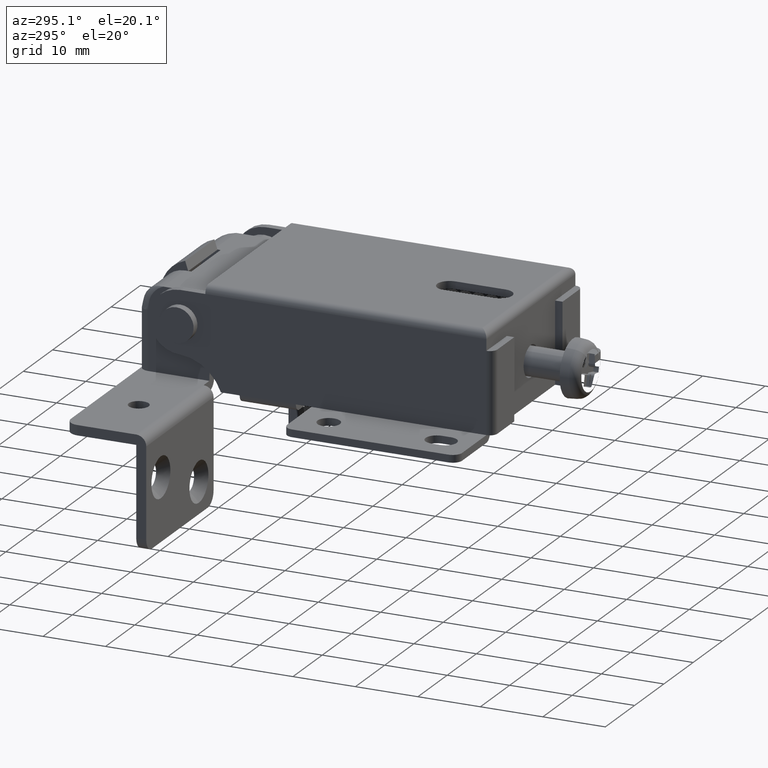
[diagram: clean part render]
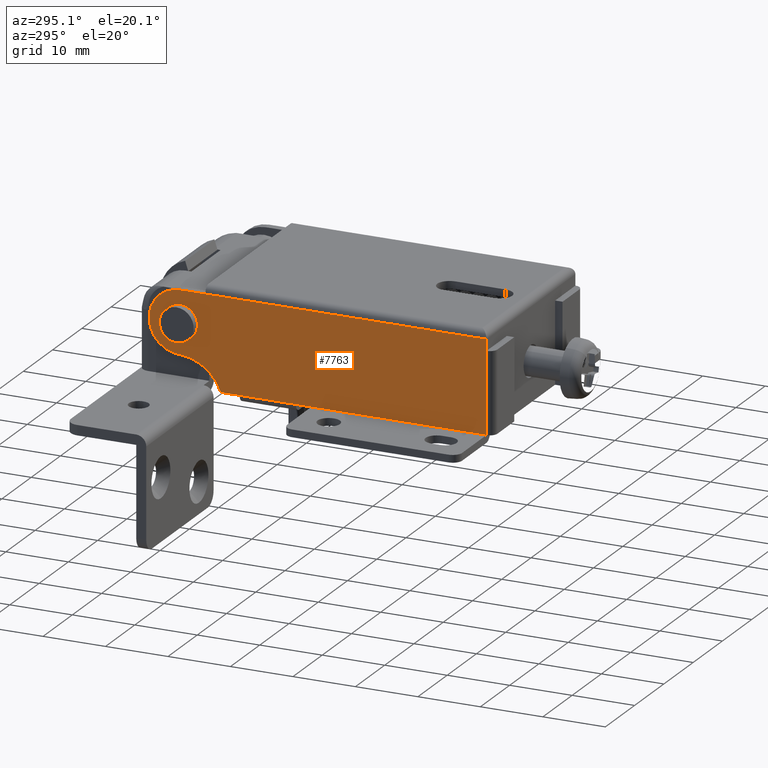
[diagram: same view with one face highlighted and labeled with its STEP entity id]
A machine part, auxiliary view. The second image highlights one B-rep face of the part: STEP entity #7763.
In plain terms, the highlighted planar face has unit normal (-1, 0, 0).
Its self-contained STEP definition (entity closure, byte-faithful):
#46 = CARTESIAN_POINT ( 'NONE',  ( -15.19999699999980100, 9.799988000000000800, -21.00000000000000000 ) ) ;
#85 = DIRECTION ( 'NONE',  ( -0.0000000000000000000, -1.000000000000000000, -0.0000000000000000000 ) ) ;
#169 = EDGE_CURVE ( 'NONE', #3372, #3811, #8969, .T. ) ;
#237 = VECTOR ( 'NONE', #9593, 1000.000000000000000 ) ;
#273 = DIRECTION ( 'NONE',  ( 0.0000000000000000000, 0.0000000000000000000, 1.000000000000000000 ) ) ;
#344 = ORIENTED_EDGE ( 'NONE', *, *, #6634, .F. ) ;
#776 = CIRCLE ( 'NONE', #3561, 7.356812999999999800 ) ;
#830 = DIRECTION ( 'NONE',  ( -0.0000000000000000000, 1.000000000000000000, -0.0000000000000000000 ) ) ;
#995 = ORIENTED_EDGE ( 'NONE', *, *, #8978, .F. ) ;
#1033 = CIRCLE ( 'NONE', #3347, 2.000000000000000000 ) ;
#1336 = AXIS2_PLACEMENT_3D ( 'NONE', #5017, #11026, #5862 ) ;
#1428 = CARTESIAN_POINT ( 'NONE',  ( -15.19999699999980100, 9.799988000000000800, -49.00000000000000000 ) ) ;
#1594 = ORIENTED_EDGE ( 'NONE', *, *, #10407, .F. ) ;
#1631 = AXIS2_PLACEMENT_3D ( 'NONE', #7028, #3642, #9615 ) ;
#1872 = CARTESIAN_POINT ( 'NONE',  ( -15.19999699999974900, 9.799988000000000800, -6.499999999999889900 ) ) ;
#1905 = CARTESIAN_POINT ( 'NONE',  ( -15.19999699999980100, 9.799988000000000800, 0.0000000000000000000 ) ) ;
#1949 = CARTESIAN_POINT ( 'NONE',  ( -15.19999699999980100, 9.799988000000000800, 0.0000000000000000000 ) ) ;
#1961 = DIRECTION ( 'NONE',  ( -0.0000000000000000000, -0.0000000000000000000, -1.000000000000000000 ) ) ;
#1972 = VERTEX_POINT ( 'NONE', #4475 ) ;
#2109 = ORIENTED_EDGE ( 'NONE', *, *, #2665, .T. ) ;
#2254 = ORIENTED_EDGE ( 'NONE', *, *, #7392, .T. ) ;
#2321 = EDGE_LOOP ( 'NONE', ( #8664, #8094 ) ) ;
#2350 = VERTEX_POINT ( 'NONE', #8283 ) ;
#2422 = VECTOR ( 'NONE', #7569, 1000.000000000000000 ) ;
#2438 = LINE ( 'NONE', #5121, #8981 ) ;
#2665 = EDGE_CURVE ( 'NONE', #3707, #3811, #776, .T. ) ;
#2928 = CARTESIAN_POINT ( 'NONE',  ( -15.19999699999980100, 9.799999999999890600, -9.500000000000000000 ) ) ;
#3074 = LINE ( 'NONE', #7047, #7624 ) ;
#3159 = VECTOR ( 'NONE', #830, 1000.000000000000000 ) ;
#3184 = VECTOR ( 'NONE', #4765, 1000.000000000000000 ) ;
#3347 = AXIS2_PLACEMENT_3D ( 'NONE', #4854, #10863, #5701 ) ;
#3372 = VERTEX_POINT ( 'NONE', #8255 ) ;
#3447 = LINE ( 'NONE', #6436, #3184 ) ;
#3457 = EDGE_CURVE ( 'NONE', #9813, #5471, #5374, .T. ) ;
#3506 = EDGE_CURVE ( 'NONE', #6826, #2350, #9155, .T. ) ;
#3561 = AXIS2_PLACEMENT_3D ( 'NONE', #10444, #5300, #273 ) ;
#3642 = DIRECTION ( 'NONE',  ( -1.000000000000000000, 0.0000000000000000000, 0.0000000000000000000 ) ) ;
#3707 = VERTEX_POINT ( 'NONE', #4314 ) ;
#3811 = VERTEX_POINT ( 'NONE', #1872 ) ;
#3852 = EDGE_CURVE ( 'NONE', #7139, #4250, #5233, .T. ) ;
#3955 = ORIENTED_EDGE ( 'NONE', *, *, #6503, .F. ) ;
#4107 = ORIENTED_EDGE ( 'NONE', *, *, #3457, .F. ) ;
#4113 = LINE ( 'NONE', #8015, #10689 ) ;
#4125 = CARTESIAN_POINT ( 'NONE',  ( -15.19999699999980100, -3.200000999999999900, -48.99999700000000000 ) ) ;
#4133 = CARTESIAN_POINT ( 'NONE',  ( -15.19999699999980100, -5.000000000000230000, 0.0000000000000000000 ) ) ;
#4175 = EDGE_LOOP ( 'NONE', ( #4107, #5600, #344, #8608, #3955, #2109, #6999, #995, #7192, #1594, #7926, #2254, #6463 ) ) ;
#4225 = CARTESIAN_POINT ( 'NONE',  ( -15.19999699999980100, 0.0000000000000000000, -18.50000000000000000 ) ) ;
#4250 = VERTEX_POINT ( 'NONE', #9500 ) ;
#4314 = CARTESIAN_POINT ( 'NONE',  ( -15.19999699999974900, 4.999999995964620900, -0.0002008824819366704900 ) ) ;
#4475 = CARTESIAN_POINT ( 'NONE',  ( -15.19999699999980100, 9.799999999999890600, -18.50000000000000000 ) ) ;
#4483 = VERTEX_POINT ( 'NONE', #2928 ) ;
#4584 = DIRECTION ( 'NONE',  ( -0.0000000000000000000, -0.0000000000000000000, -1.000000000000000000 ) ) ;
#4706 = CARTESIAN_POINT ( 'NONE',  ( -15.19999699999974900, 0.0000000000000000000, 0.0000000000000000000 ) ) ;
#4765 = DIRECTION ( 'NONE',  ( -0.0000000000000000000, -0.0000000000000000000, 1.000000000000000000 ) ) ;
#4854 = CARTESIAN_POINT ( 'NONE',  ( -15.19999699999974900, 0.0000000000000000000, 0.0000000000000000000 ) ) ;
#4915 = CARTESIAN_POINT ( 'NONE',  ( -15.19999699999974900, 2.449293598294706400E-016, 2.000000000000000000 ) ) ;
#4919 = CARTESIAN_POINT ( 'NONE',  ( -15.19999699999980100, 0.0000000000000000000, -49.00000000000000000 ) ) ;
#5017 = CARTESIAN_POINT ( 'NONE',  ( -15.19999699999974900, 0.0000000000000000000, 0.0000000000000000000 ) ) ;
#5121 = CARTESIAN_POINT ( 'NONE',  ( -15.19999699999980100, 0.0000000000000000000, -4.000000000000000000 ) ) ;
#5206 = CIRCLE ( 'NONE', #1336, 5.000000000000000000 ) ;
#5228 = EDGE_CURVE ( 'NONE', #10957, #5471, #9405, .T. ) ;
#5233 = LINE ( 'NONE', #1905, #237 ) ;
#5300 = DIRECTION ( 'NONE',  ( 1.000000000000000000, -0.0000000000000000000, -0.0000000000000000000 ) ) ;
#5374 = LINE ( 'NONE', #4919, #9676 ) ;
#5471 = VERTEX_POINT ( 'NONE', #7783 ) ;
#5554 = DIRECTION ( 'NONE',  ( 0.0000000000000000000, 0.0000000000000000000, 1.000000000000000000 ) ) ;
#5600 = ORIENTED_EDGE ( 'NONE', *, *, #9394, .T. ) ;
#5701 = DIRECTION ( 'NONE',  ( 0.0000000000000000000, 0.0000000000000000000, 1.000000000000000000 ) ) ;
#5763 = DIRECTION ( 'NONE',  ( -0.0000000000000000000, 1.000000000000000000, -0.0000000000000000000 ) ) ;
#5862 = DIRECTION ( 'NONE',  ( 0.0000000000000000000, 0.0000000000000000000, 1.000000000000000000 ) ) ;
#6271 = CARTESIAN_POINT ( 'NONE',  ( -15.19999699999980100, 9.799999999999890600, -18.50000000000000000 ) ) ;
#6372 = LINE ( 'NONE', #6271, #10963 ) ;
#6436 = CARTESIAN_POINT ( 'NONE',  ( -15.19999699999980100, -5.000012000000070100, -4.000000000000000000 ) ) ;
#6463 = ORIENTED_EDGE ( 'NONE', *, *, #5228, .T. ) ;
#6503 = EDGE_CURVE ( 'NONE', #3707, #6826, #5206, .T. ) ;
#6634 = EDGE_CURVE ( 'NONE', #2350, #8909, #2438, .T. ) ;
#6826 = VERTEX_POINT ( 'NONE', #8181 ) ;
#6852 = VECTOR ( 'NONE', #11000, 1000.000000000000000 ) ;
#6999 = ORIENTED_EDGE ( 'NONE', *, *, #169, .F. ) ;
#7028 = CARTESIAN_POINT ( 'NONE',  ( -15.19999699999980100, 0.0000000000000000000, 0.0000000000000000000 ) ) ;
#7047 = CARTESIAN_POINT ( 'NONE',  ( -15.19999699999980100, 9.799988000000000800, 0.0000000000000000000 ) ) ;
#7092 = VERTEX_POINT ( 'NONE', #10158 ) ;
#7139 = VERTEX_POINT ( 'NONE', #46 ) ;
#7192 = ORIENTED_EDGE ( 'NONE', *, *, #8977, .T. ) ;
#7390 = VECTOR ( 'NONE', #10103, 1000.000000000000000 ) ;
#7392 = EDGE_CURVE ( 'NONE', #7139, #10957, #3074, .T. ) ;
#7569 = DIRECTION ( 'NONE',  ( -0.0000000000000000000, -0.0000000000000000000, 1.000000000000000000 ) ) ;
#7623 = CARTESIAN_POINT ( 'NONE',  ( -15.19999699999980100, -5.000012000000070100, -4.000000000000000000 ) ) ;
#7624 = VECTOR ( 'NONE', #1961, 1000.000000000000000 ) ;
#7659 = VERTEX_POINT ( 'NONE', #4915 ) ;
#7697 = LINE ( 'NONE', #4225, #3159 ) ;
#7763 = ADVANCED_FACE ( 'NONE', ( #9228, #8964 ), #9583, .T. ) ;
#7783 = CARTESIAN_POINT ( 'NONE',  ( -15.19999699999980100, -3.200012000000069800, -49.00000000000000000 ) ) ;
#7926 = ORIENTED_EDGE ( 'NONE', *, *, #3852, .F. ) ;
#8015 = CARTESIAN_POINT ( 'NONE',  ( -15.19999699999980100, 0.0000000000000000000, -9.500000000000000000 ) ) ;
#8094 = ORIENTED_EDGE ( 'NONE', *, *, #10111, .T. ) ;
#8181 = CARTESIAN_POINT ( 'NONE',  ( -15.19999699999974900, -5.000000000000230000, -3.061515884556079700E-016 ) ) ;
#8255 = CARTESIAN_POINT ( 'NONE',  ( -15.19999699999974900, 9.799988000000000800, -9.500000000000000000 ) ) ;
#8283 = CARTESIAN_POINT ( 'NONE',  ( -15.19999699999974900, -5.000000000000230000, -4.000000000000000000 ) ) ;
#8608 = ORIENTED_EDGE ( 'NONE', *, *, #3506, .F. ) ;
#8664 = ORIENTED_EDGE ( 'NONE', *, *, #10239, .T. ) ;
#8904 = DIRECTION ( 'NONE',  ( -0.0000000000000000000, -1.000000000000000000, -0.0000000000000000000 ) ) ;
#8909 = VERTEX_POINT ( 'NONE', #7623 ) ;
#8964 = FACE_OUTER_BOUND ( 'NONE', #4175, .T. ) ;
#8969 = LINE ( 'NONE', #1949, #2422 ) ;
#8977 = EDGE_CURVE ( 'NONE', #4483, #1972, #6372, .T. ) ;
#8978 = EDGE_CURVE ( 'NONE', #4483, #3372, #4113, .T. ) ;
#8981 = VECTOR ( 'NONE', #85, 1000.000000000000000 ) ;
#9155 = LINE ( 'NONE', #4133, #6852 ) ;
#9228 = FACE_BOUND ( 'NONE', #2321, .T. ) ;
#9394 = EDGE_CURVE ( 'NONE', #9813, #8909, #3447, .T. ) ;
#9405 = LINE ( 'NONE', #4125, #7390 ) ;
#9500 = CARTESIAN_POINT ( 'NONE',  ( -15.19999699999974900, 9.799988000000000800, -18.50000000000000000 ) ) ;
#9583 = PLANE ( 'NONE',  #1631 ) ;
#9593 = DIRECTION ( 'NONE',  ( -0.0000000000000000000, -0.0000000000000000000, 1.000000000000000000 ) ) ;
#9615 = DIRECTION ( 'NONE',  ( 0.0000000000000000000, 1.000000000000000000, 0.0000000000000000000 ) ) ;
#9676 = VECTOR ( 'NONE', #5763, 1000.000000000000000 ) ;
#9813 = VERTEX_POINT ( 'NONE', #10367 ) ;
#9858 = AXIS2_PLACEMENT_3D ( 'NONE', #4706, #10716, #5554 ) ;
#10103 = DIRECTION ( 'NONE',  ( -0.0000000000000000000, -1.000000000000000000, -0.0000000000000000000 ) ) ;
#10111 = EDGE_CURVE ( 'NONE', #7659, #7092, #10663, .T. ) ;
#10158 = CARTESIAN_POINT ( 'NONE',  ( -15.19999699999974900, 0.0000000000000000000, -2.000000000000000000 ) ) ;
#10239 = EDGE_CURVE ( 'NONE', #7092, #7659, #1033, .T. ) ;
#10367 = CARTESIAN_POINT ( 'NONE',  ( -15.19999699999974900, -5.000012000000070100, -49.00000000000000000 ) ) ;
#10407 = EDGE_CURVE ( 'NONE', #4250, #1972, #7697, .T. ) ;
#10444 = CARTESIAN_POINT ( 'NONE',  ( -15.19999699999974900, 12.34579499999999900, 0.4022830000000119900 ) ) ;
#10663 = CIRCLE ( 'NONE', #9858, 2.000000000000000000 ) ;
#10689 = VECTOR ( 'NONE', #8904, 1000.000000000000000 ) ;
#10716 = DIRECTION ( 'NONE',  ( 1.000000000000000000, -0.0000000000000000000, -0.0000000000000000000 ) ) ;
#10863 = DIRECTION ( 'NONE',  ( 1.000000000000000000, -0.0000000000000000000, -0.0000000000000000000 ) ) ;
#10957 = VERTEX_POINT ( 'NONE', #1428 ) ;
#10963 = VECTOR ( 'NONE', #4584, 1000.000000000000000 ) ;
#11000 = DIRECTION ( 'NONE',  ( -0.0000000000000000000, -0.0000000000000000000, -1.000000000000000000 ) ) ;
#11026 = DIRECTION ( 'NONE',  ( 1.000000000000000000, -0.0000000000000000000, -0.0000000000000000000 ) ) ;